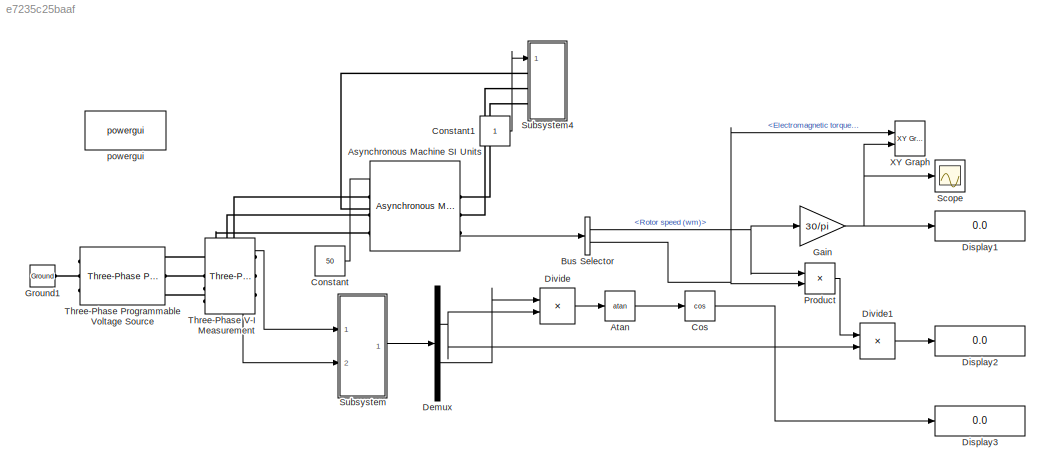
MODEL slx_e7235c25baaf
KIND model
CONFIG AbsTol = auto
CONFIG EnableMultiTasking = off
CONFIG FixedStep = auto
CONFIG MaxStep = auto
CONFIG MinStep = auto
CONFIG RelTol = 1e-3
CONFIG SampleTimeConstraint = Unconstrained
CONFIG Solver = VariableStepAuto
CONFIG SolverName = VariableStepAuto
CONFIG StartTime = 0.0
CONFIG StopTime = 1
BLOCK [Reference] Asynchronous Machine SI Units  REF=powerlib/Machines/Asynchronous Machine
SI Units
  Ports = [1, 1, 0, 0, 0, 3, 3]
  SourceBlock = powerlib/Machines/Asynchronous Machine\nSI Units
  SourceProductBaseCode = PS
  SourceProductName = Simscape Electrical
  SourceType = Asynchronous Machine
BLOCK [Trigonometry] Atan
  Operator = atan
  Ports = [1, 1]
BLOCK [BusSelector] Bus Selector
  OutputAsBus = off
  OutputSignals = Mechanical.Rotor speed (wm),Mechanical.Electromagnetic torque Te (N*m)
  Ports = [1, 2]
BLOCK [Constant] Constant
  Value = 50
BLOCK [Constant] Constant1
BLOCK [Trigonometry] Cos
  Operator = cos
  Ports = [1, 1]
BLOCK [Demux] Demux
  DisplayOption = bar
  Outputs = 2
  Ports = [1, 2]
BLOCK [Display] Display1
  Decimation = 1
  Ports = [1]
BLOCK [Display] Display2
  Decimation = 1
  Ports = [1]
BLOCK [Display] Display3
  Decimation = 1
  Ports = [1]
BLOCK [Product] Divide
  InputSameDT = off
  Inputs = */
  OutDataTypeStr = Inherit: Inherit via internal rule
  Ports = [2, 1]
  RndMeth = Floor
  SaturateOnIntegerOverflow = off
BLOCK [Product] Divide1
  InputSameDT = off
  Inputs = */
  OutDataTypeStr = Inherit: Inherit via internal rule
  Ports = [2, 1]
  RndMeth = Floor
  SaturateOnIntegerOverflow = off
BLOCK [Gain] Gain
  Gain = 30/pi
  OutDataTypeStr = Inherit: Inherit via internal rule
  ParamDataTypeStr = Inherit: Inherit via internal rule
  SaturateOnIntegerOverflow = off
BLOCK [Reference] Ground1  REF=powerlib/Elements/Ground
  Ports = [0, 0, 0, 0, 0, 1]
  SourceBlock = powerlib/Elements/Ground
  SourceProductBaseCode = PS
  SourceProductName = Simscape Electrical
  SourceType = Ground
BLOCK [Product] Product
  InputSameDT = off
  OutDataTypeStr = Inherit: Inherit via internal rule
  Ports = [2, 1]
  RndMeth = Floor
  SaturateOnIntegerOverflow = off
BLOCK [Scope] Scope
  Floating = off
  NumInputPorts = 1
  Ports = [1]
  ScopeSpecificationString = Simulink.scopes.TimeScopeBlockCfg('CurrentConfiguration', extmgr.ConfigurationSet(extmgr.Configuration('Core','General UI',true),extmgr.Configuration('Core','Source UI',true),extmgr.Configuration('Sources','WiredSimulink',true),extmgr.Configuration('Visuals','Time Domain',true,'SerializedDisplays',{struct('MinYLimReal','463.05442','MaxYLimReal','781.88284','YLabelReal','','MinYLimMag','463.05442',...<+1338ch>
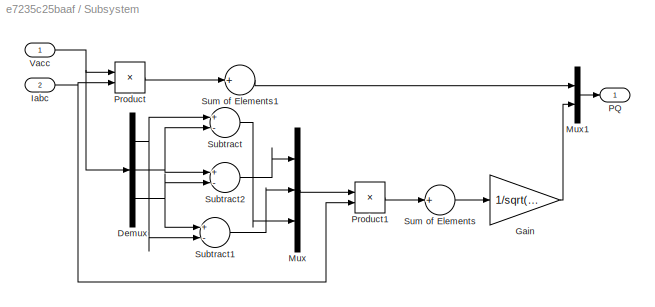
BLOCK [SubSystem] Subsystem
  Ports = [2, 1]
  RequestExecContextInheritance = off
BLOCK [Demux] Subsystem/Demux
  DisplayOption = bar
  Outputs = 3
  Ports = [1, 3]
BLOCK [Gain] Subsystem/Gain
  Gain = 1/sqrt(3)
  OutDataTypeStr = Inherit: Inherit via internal rule
  ParamDataTypeStr = Inherit: Inherit via internal rule
  SaturateOnIntegerOverflow = off
BLOCK [Inport] Subsystem/Iabc 
  IconDisplay = Port number
  Port = 2
BLOCK [Mux] Subsystem/Mux
  DisplayOption = bar
  Inputs = 3
  Ports = [3, 1]
BLOCK [Mux] Subsystem/Mux1
  DisplayOption = bar
  Inputs = 2
  Ports = [2, 1]
BLOCK [Outport] Subsystem/PQ 
  IconDisplay = Port number
BLOCK [Product] Subsystem/Product
  InputSameDT = off
  OutDataTypeStr = Inherit: Inherit via internal rule
  Ports = [2, 1]
  RndMeth = Floor
  SaturateOnIntegerOverflow = off
BLOCK [Product] Subsystem/Product1
  InputSameDT = off
  OutDataTypeStr = Inherit: Inherit via internal rule
  Ports = [2, 1]
  RndMeth = Floor
  SaturateOnIntegerOverflow = off
BLOCK [Sum] Subsystem/Subtract
  InputSameDT = off
  Inputs = +-
  OutDataTypeStr = Inherit: Inherit via internal rule
  Ports = [2, 1]
  SaturateOnIntegerOverflow = off
BLOCK [Sum] Subsystem/Subtract1
  InputSameDT = off
  Inputs = +-
  OutDataTypeStr = Inherit: Inherit via internal rule
  Ports = [2, 1]
  SaturateOnIntegerOverflow = off
BLOCK [Sum] Subsystem/Subtract2
  InputSameDT = off
  Inputs = +-
  OutDataTypeStr = Inherit: Inherit via internal rule
  Ports = [2, 1]
  SaturateOnIntegerOverflow = off
BLOCK [Sum] Subsystem/Sum of Elements
  InputSameDT = off
  Inputs = +
  OutDataTypeStr = Inherit: Inherit via internal rule
  Ports = [1, 1]
  SaturateOnIntegerOverflow = off
BLOCK [Sum] Subsystem/Sum of Elements1
  InputSameDT = off
  Inputs = +
  OutDataTypeStr = Inherit: Inherit via internal rule
  Ports = [1, 1]
  SaturateOnIntegerOverflow = off
BLOCK [Inport] Subsystem/Vacc 
  IconDisplay = Port number
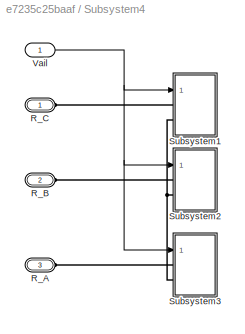
BLOCK [SubSystem] Subsystem4
  Ports = [1, 0, 0, 0, 0, 3]
  RequestExecContextInheritance = off
BLOCK [PMIOPort] Subsystem4/R_A
  Port = 3
  Side = Left
BLOCK [PMIOPort] Subsystem4/R_B
  Port = 2
  Side = Left
BLOCK [PMIOPort] Subsystem4/R_C
  Side = Left
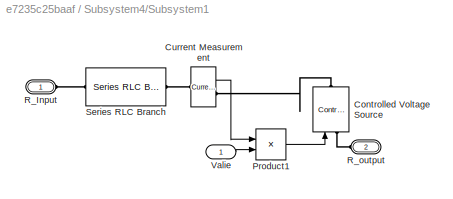
BLOCK [SubSystem] Subsystem4/Subsystem1
  Ports = [1, 0, 0, 0, 0, 2]
  RequestExecContextInheritance = off
BLOCK [Reference] Subsystem4/Subsystem1/Controlled Voltage Source  REF=powerlib/Electrical
Sources/Controlled Voltage Source
  Ports = [1, 0, 0, 0, 0, 1, 1]
  SourceBlock = powerlib/Electrical\nSources/Controlled Voltage Source
  SourceProductBaseCode = PS
  SourceProductName = Simscape Electrical
  SourceType = Controlled Voltage Source
BLOCK [Reference] Subsystem4/Subsystem1/Current Measurement  REF=powerlib/Measurements/Current Measurement
  Ports = [0, 1, 0, 0, 0, 1, 1]
  SourceBlock = powerlib/Measurements/Current Measurement
  SourceProductBaseCode = PS
  SourceProductName = Simscape Electrical
  SourceType = Current Measurement
  UserDataPersistent = on
BLOCK [Product] Subsystem4/Subsystem1/Product1
  InputSameDT = off
  OutDataTypeStr = Inherit: Inherit via internal rule
  Ports = [2, 1]
  RndMeth = Floor
  SaturateOnIntegerOverflow = off
BLOCK [PMIOPort] Subsystem4/Subsystem1/R_Input
  Side = Left
BLOCK [PMIOPort] Subsystem4/Subsystem1/R_output
  Port = 2
  Side = Left
BLOCK [Reference] Subsystem4/Subsystem1/Series RLC Branch  REF=powerlib/Elements/Series RLC Branch
  Ports = [0, 0, 0, 0, 0, 1, 1]
  SourceBlock = powerlib/Elements/Series RLC Branch
  SourceProductBaseCode = PS
  SourceProductName = Simscape Electrical
  SourceType = Series RLC Branch
BLOCK [Inport] Subsystem4/Subsystem1/Valie
  IconDisplay = Port number
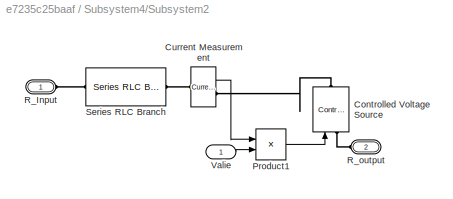
BLOCK [SubSystem] Subsystem4/Subsystem2
  Ports = [1, 0, 0, 0, 0, 2]
  RequestExecContextInheritance = off
BLOCK [Reference] Subsystem4/Subsystem2/Controlled Voltage Source  REF=powerlib/Electrical
Sources/Controlled Voltage Source
  Ports = [1, 0, 0, 0, 0, 1, 1]
  SourceBlock = powerlib/Electrical\nSources/Controlled Voltage Source
  SourceProductBaseCode = PS
  SourceProductName = Simscape Electrical
  SourceType = Controlled Voltage Source
BLOCK [Reference] Subsystem4/Subsystem2/Current Measurement  REF=powerlib/Measurements/Current Measurement
  Ports = [0, 1, 0, 0, 0, 1, 1]
  SourceBlock = powerlib/Measurements/Current Measurement
  SourceProductBaseCode = PS
  SourceProductName = Simscape Electrical
  SourceType = Current Measurement
  UserDataPersistent = on
BLOCK [Product] Subsystem4/Subsystem2/Product1
  InputSameDT = off
  OutDataTypeStr = Inherit: Inherit via internal rule
  Ports = [2, 1]
  RndMeth = Floor
  SaturateOnIntegerOverflow = off
BLOCK [PMIOPort] Subsystem4/Subsystem2/R_Input
  Side = Left
BLOCK [PMIOPort] Subsystem4/Subsystem2/R_output
  Port = 2
  Side = Left
BLOCK [Reference] Subsystem4/Subsystem2/Series RLC Branch  REF=powerlib/Elements/Series RLC Branch
  Ports = [0, 0, 0, 0, 0, 1, 1]
  SourceBlock = powerlib/Elements/Series RLC Branch
  SourceProductBaseCode = PS
  SourceProductName = Simscape Electrical
  SourceType = Series RLC Branch
BLOCK [Inport] Subsystem4/Subsystem2/Valie
  IconDisplay = Port number
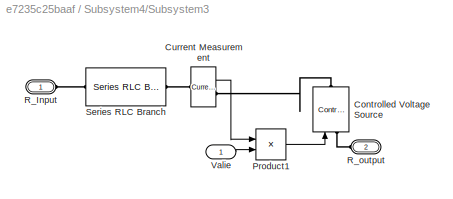
BLOCK [SubSystem] Subsystem4/Subsystem3
  Ports = [1, 0, 0, 0, 0, 2]
  RequestExecContextInheritance = off
BLOCK [Reference] Subsystem4/Subsystem3/Controlled Voltage Source  REF=powerlib/Electrical
Sources/Controlled Voltage Source
  Ports = [1, 0, 0, 0, 0, 1, 1]
  SourceBlock = powerlib/Electrical\nSources/Controlled Voltage Source
  SourceProductBaseCode = PS
  SourceProductName = Simscape Electrical
  SourceType = Controlled Voltage Source
BLOCK [Reference] Subsystem4/Subsystem3/Current Measurement  REF=powerlib/Measurements/Current Measurement
  Ports = [0, 1, 0, 0, 0, 1, 1]
  SourceBlock = powerlib/Measurements/Current Measurement
  SourceProductBaseCode = PS
  SourceProductName = Simscape Electrical
  SourceType = Current Measurement
  UserDataPersistent = on
BLOCK [Product] Subsystem4/Subsystem3/Product1
  InputSameDT = off
  OutDataTypeStr = Inherit: Inherit via internal rule
  Ports = [2, 1]
  RndMeth = Floor
  SaturateOnIntegerOverflow = off
BLOCK [PMIOPort] Subsystem4/Subsystem3/R_Input
  Side = Left
BLOCK [PMIOPort] Subsystem4/Subsystem3/R_output
  Port = 2
  Side = Left
BLOCK [Reference] Subsystem4/Subsystem3/Series RLC Branch  REF=powerlib/Elements/Series RLC Branch
  Ports = [0, 0, 0, 0, 0, 1, 1]
  SourceBlock = powerlib/Elements/Series RLC Branch
  SourceProductBaseCode = PS
  SourceProductName = Simscape Electrical
  SourceType = Series RLC Branch
BLOCK [Inport] Subsystem4/Subsystem3/Valie
  IconDisplay = Port number
BLOCK [Inport] Subsystem4/Vail 
  IconDisplay = Port number
BLOCK [Reference] Three-Phase Programmable Voltage Source  REF=powerlib/Electrical
Sources/Three-Phase
Programmable
Voltage Source
  Ports = [0, 0, 0, 0, 0, 1, 3]
  SourceBlock = powerlib/Electrical\nSources/Three-Phase\nProgrammable\nVoltage Source
  SourceProductBaseCode = PS
  SourceProductName = Simscape Electrical
  SourceType = Three-Phase Programmable Voltage Source
BLOCK [Reference] Three-Phase V-I Measurement  REF=powerlib/Measurements/Three-Phase
V-I Measurement
  Ports = [0, 2, 0, 0, 0, 3, 3]
  SourceBlock = powerlib/Measurements/Three-Phase\nV-I Measurement
  SourceProductBaseCode = PS
  SourceProductName = Simscape Electrical
  SourceType = Three-Phase VI Measurement
BLOCK [Reference] XY Graph  REF=simulink/Sinks/XY Graph
  Ports = [2]
  SourceBlock = simulink/Sinks/XY Graph
  SourceProductBaseCode = SL
  SourceProductName = Simulink
  SourceType = XY scope.
BLOCK [Reference] powergui  REF=powerlib/powergui
  Ports = []
  Priority = 1
  SourceBlock = powerlib/powergui
  SourceProductBaseCode = PS
  SourceProductName = Simscape Electrical
  SourceType = PSB option menu block
LINE Asynchronous Machine SI Units:1 -> Bus Selector:1
LINE Atan:1 -> Cos:1
NET Bus Selector:1 -> Gain:1, Product:1
NET Bus Selector:2 -> Product:2, XY Graph:1
LINE Constant1:1 -> Subsystem4:1
LINE Constant:1 -> Asynchronous Machine SI Units:1
LINE Cos:1 -> Display3:1
NET Demux:1 -> Divide1:2, Divide:2
LINE Demux:2 -> Divide:1
LINE Divide1:1 -> Display2:1
LINE Divide:1 -> Atan:1
NET Gain:1 -> Display1:1, Scope:1, XY Graph:2
LINE Product:1 -> Divide1:1
NET Subsystem/Demux:1 -> Subsystem/Subtract1:2, Subsystem/Subtract:1
NET Subsystem/Demux:2 -> Subsystem/Subtract2:1, Subsystem/Subtract:2
NET Subsystem/Demux:3 -> Subsystem/Subtract1:1, Subsystem/Subtract2:2
LINE Subsystem/Gain:1 -> Subsystem/Mux1:2
NET Subsystem/Iabc :1 -> Subsystem/Product1:2, Subsystem/Product:2
LINE Subsystem/Mux1:1 -> Subsystem/PQ :1
LINE Subsystem/Mux:1 -> Subsystem/Product1:1
LINE Subsystem/Product1:1 -> Subsystem/Sum of Elements:1
LINE Subsystem/Product:1 -> Subsystem/Sum of Elements1:1
LINE Subsystem/Subtract1:1 -> Subsystem/Mux:2
LINE Subsystem/Subtract2:1 -> Subsystem/Mux:1
LINE Subsystem/Subtract:1 -> Subsystem/Mux:3
LINE Subsystem/Sum of Elements1:1 -> Subsystem/Mux1:1
LINE Subsystem/Sum of Elements:1 -> Subsystem/Gain:1
NET Subsystem/Vacc :1 -> Subsystem/Demux:1, Subsystem/Product:1
LINE Subsystem4/Subsystem1/Current Measurement:1 -> Subsystem4/Subsystem1/Product1:1
LINE Subsystem4/Subsystem1/Product1:1 -> Subsystem4/Subsystem1/Controlled Voltage Source:1
LINE Subsystem4/Subsystem1/Valie:1 -> Subsystem4/Subsystem1/Product1:2
LINE Subsystem4/Subsystem2/Current Measurement:1 -> Subsystem4/Subsystem2/Product1:1
LINE Subsystem4/Subsystem2/Product1:1 -> Subsystem4/Subsystem2/Controlled Voltage Source:1
LINE Subsystem4/Subsystem2/Valie:1 -> Subsystem4/Subsystem2/Product1:2
LINE Subsystem4/Subsystem3/Current Measurement:1 -> Subsystem4/Subsystem3/Product1:1
LINE Subsystem4/Subsystem3/Product1:1 -> Subsystem4/Subsystem3/Controlled Voltage Source:1
LINE Subsystem4/Subsystem3/Valie:1 -> Subsystem4/Subsystem3/Product1:2
NET Subsystem4/Vail :1 -> Subsystem4/Subsystem1:1, Subsystem4/Subsystem2:1, Subsystem4/Subsystem3:1
LINE Subsystem:1 -> Demux:1
LINE Three-Phase V-I Measurement:1 -> Subsystem:1
LINE Three-Phase V-I Measurement:2 -> Subsystem:2
PLINE Asynchronous Machine SI Units:LConn1 -- Three-Phase V-I Measurement:RConn1
PLINE Asynchronous Machine SI Units:LConn2 -- Three-Phase V-I Measurement:RConn2
PLINE Asynchronous Machine SI Units:LConn3 -- Three-Phase V-I Measurement:RConn3
PLINE Asynchronous Machine SI Units:RConn1 -- Subsystem4:LConn3
PLINE Asynchronous Machine SI Units:RConn2 -- Subsystem4:LConn2
PLINE Asynchronous Machine SI Units:RConn3 -- Subsystem4:LConn1
PLINE Ground1:LConn1 -- Three-Phase Programmable Voltage Source:LConn1
PLINE Subsystem4/R_A:RConn1 -- Subsystem4/Subsystem3:LConn1
PLINE Subsystem4/R_B:RConn1 -- Subsystem4/Subsystem2:LConn1
PLINE Subsystem4/R_C:RConn1 -- Subsystem4/Subsystem1:LConn1
PLINE Subsystem4/Subsystem1/Controlled Voltage Source:LConn1 -- Subsystem4/Subsystem1/R_output:RConn1
PLINE Subsystem4/Subsystem1/Controlled Voltage Source:RConn1 -- Subsystem4/Subsystem1/Current Measurement:RConn1
PLINE Subsystem4/Subsystem1/Current Measurement:LConn1 -- Subsystem4/Subsystem1/Series RLC Branch:RConn1
PLINE Subsystem4/Subsystem1/R_Input:RConn1 -- Subsystem4/Subsystem1/Series RLC Branch:LConn1
PNET net1: Subsystem4/Subsystem1:LConn2 -- Subsystem4/Subsystem2:LConn2 -- Subsystem4/Subsystem3:LConn2
PLINE Subsystem4/Subsystem2/Controlled Voltage Source:LConn1 -- Subsystem4/Subsystem2/R_output:RConn1
PLINE Subsystem4/Subsystem2/Controlled Voltage Source:RConn1 -- Subsystem4/Subsystem2/Current Measurement:RConn1
PLINE Subsystem4/Subsystem2/Current Measurement:LConn1 -- Subsystem4/Subsystem2/Series RLC Branch:RConn1
PLINE Subsystem4/Subsystem2/R_Input:RConn1 -- Subsystem4/Subsystem2/Series RLC Branch:LConn1
PLINE Subsystem4/Subsystem3/Controlled Voltage Source:LConn1 -- Subsystem4/Subsystem3/R_output:RConn1
PLINE Subsystem4/Subsystem3/Controlled Voltage Source:RConn1 -- Subsystem4/Subsystem3/Current Measurement:RConn1
PLINE Subsystem4/Subsystem3/Current Measurement:LConn1 -- Subsystem4/Subsystem3/Series RLC Branch:RConn1
PLINE Subsystem4/Subsystem3/R_Input:RConn1 -- Subsystem4/Subsystem3/Series RLC Branch:LConn1
PLINE Three-Phase Programmable Voltage Source:RConn1 -- Three-Phase V-I Measurement:LConn1
PLINE Three-Phase Programmable Voltage Source:RConn2 -- Three-Phase V-I Measurement:LConn2
PLINE Three-Phase Programmable Voltage Source:RConn3 -- Three-Phase V-I Measurement:LConn3
note: NET lines group one-source signal fan-out (src -> all destinations, sorted); 1:1 wires keep LINE; PNET lines group multi-terminal physical nets as a canonical sorted terminal list (undirected conserving connections); 2-terminal nets keep the pairwise PLINE form
